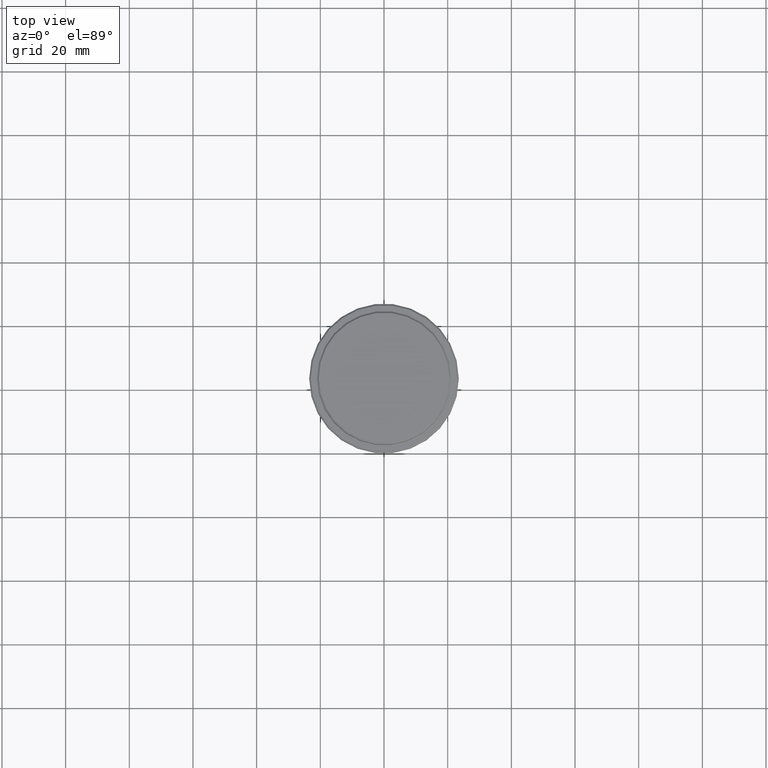
[diagram: clean part render]
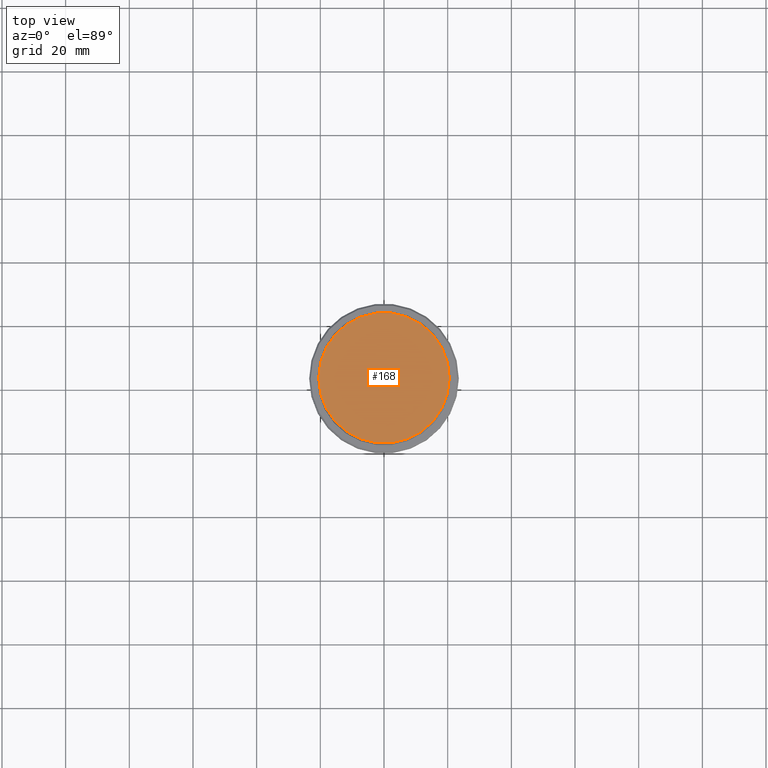
[diagram: same view with one face highlighted and labeled with its STEP entity id]
A machine part, top view. The second image highlights one B-rep face of the part: STEP entity #168.
In plain terms, the highlighted planar face has unit normal (0, -0, 1).
Its self-contained STEP definition (entity closure, byte-faithful):
#10 = EDGE_CURVE ( 'NONE', #28, #907, #281, .T. ) ;
#20 = CARTESIAN_POINT ( 'NONE',  ( -20.49999999999998934, 0.000000000000000000, 0.000000000000000000 ) ) ;
#28 = VERTEX_POINT ( 'NONE', #353 ) ;
#62 = PLANE ( 'NONE',  #954 ) ;
#147 = DIRECTION ( 'NONE',  ( 1.000000000000000000, 0.000000000000000000, 0.000000000000000000 ) ) ;
#168 = ADVANCED_FACE ( 'NONE', ( #934 ), #62, .T. ) ;
#281 = CIRCLE ( 'NONE', #1083, 20.49999999999998934 ) ;
#353 = CARTESIAN_POINT ( 'NONE',  ( 20.49999999999998934, 2.541142108230757085E-15, 0.000000000000000000 ) ) ;
#359 = AXIS2_PLACEMENT_3D ( 'NONE', #612, #856, #534 ) ;
#478 = ORIENTED_EDGE ( 'NONE', *, *, #10, .T. ) ;
#500 = CARTESIAN_POINT ( 'NONE',  ( 0.000000000000000000, 0.000000000000000000, 0.000000000000000000 ) ) ;
#534 = DIRECTION ( 'NONE',  ( 1.000000000000000000, 0.000000000000000000, 0.000000000000000000 ) ) ;
#607 = EDGE_LOOP ( 'NONE', ( #626, #478 ) ) ;
#612 = CARTESIAN_POINT ( 'NONE',  ( 0.000000000000000000, 0.000000000000000000, 0.000000000000000000 ) ) ;
#626 = ORIENTED_EDGE ( 'NONE', *, *, #1074, .T. ) ;
#856 = DIRECTION ( 'NONE',  ( -0.000000000000000000, -0.000000000000000000, 1.000000000000000000 ) ) ;
#907 = VERTEX_POINT ( 'NONE', #20 ) ;
#934 = FACE_OUTER_BOUND ( 'NONE', #607, .T. ) ;
#954 = AXIS2_PLACEMENT_3D ( 'NONE', #500, #1262, #1146 ) ;
#1074 = EDGE_CURVE ( 'NONE', #907, #28, #1254, .T. ) ;
#1083 = AXIS2_PLACEMENT_3D ( 'NONE', #1250, #1355, #147 ) ;
#1146 = DIRECTION ( 'NONE',  ( 1.000000000000000000, 0.000000000000000000, 0.000000000000000000 ) ) ;
#1250 = CARTESIAN_POINT ( 'NONE',  ( 0.000000000000000000, 0.000000000000000000, 0.000000000000000000 ) ) ;
#1254 = CIRCLE ( 'NONE', #359, 20.49999999999998934 ) ;
#1262 = DIRECTION ( 'NONE',  ( 0.000000000000000000, -0.000000000000000000, 1.000000000000000000 ) ) ;
#1355 = DIRECTION ( 'NONE',  ( -0.000000000000000000, -0.000000000000000000, 1.000000000000000000 ) ) ;